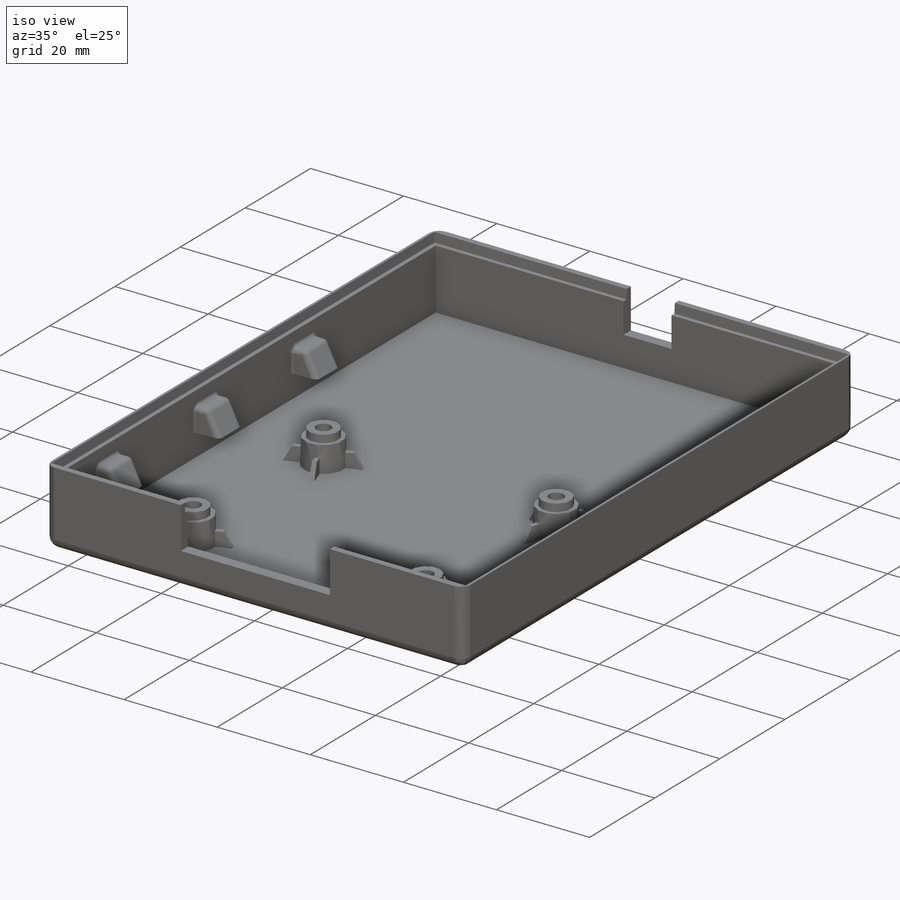
[diagram: iso view]
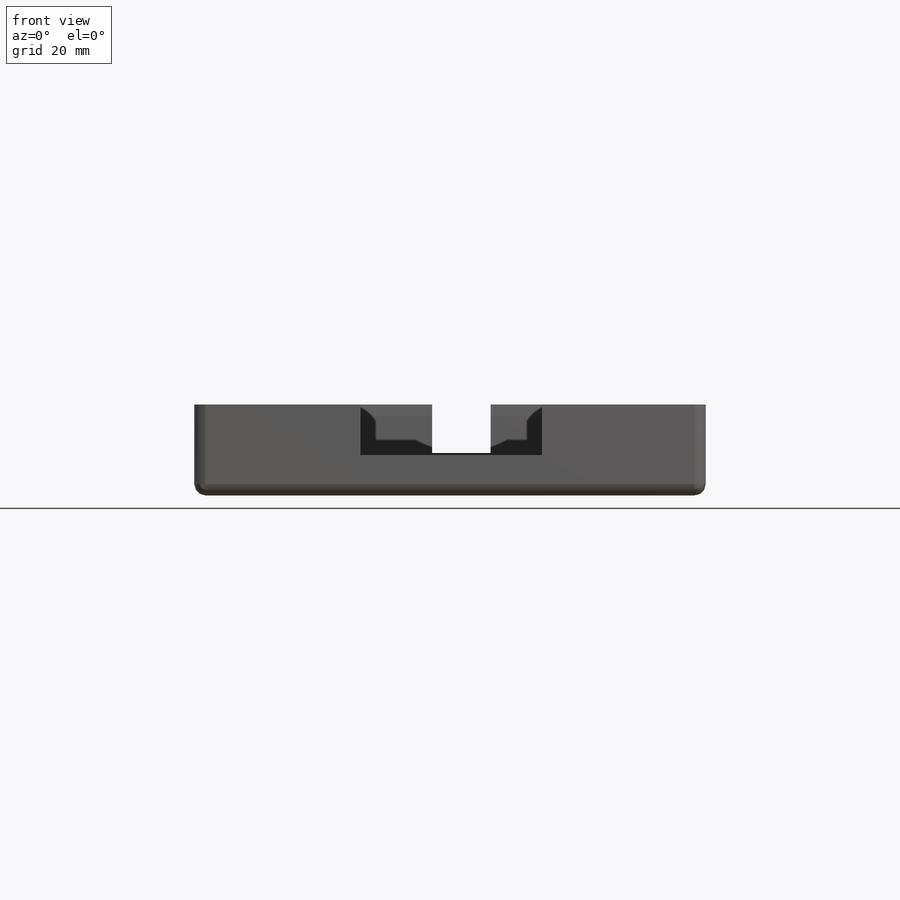
[diagram: front view]
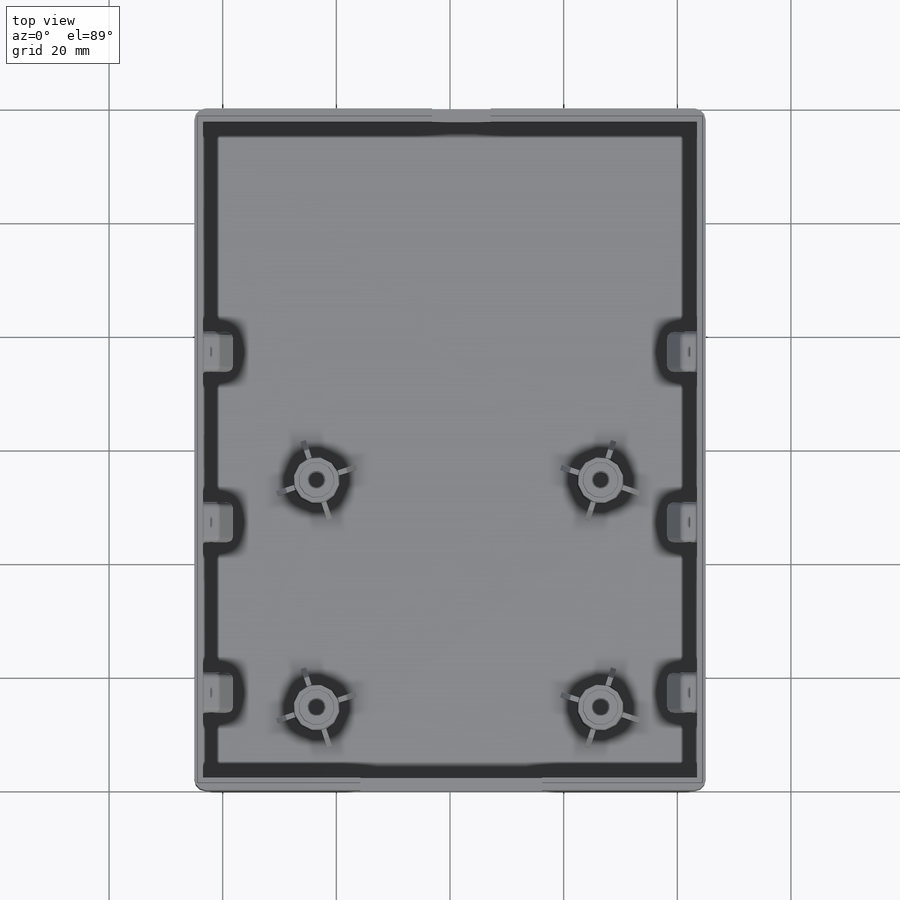
[diagram: top view]
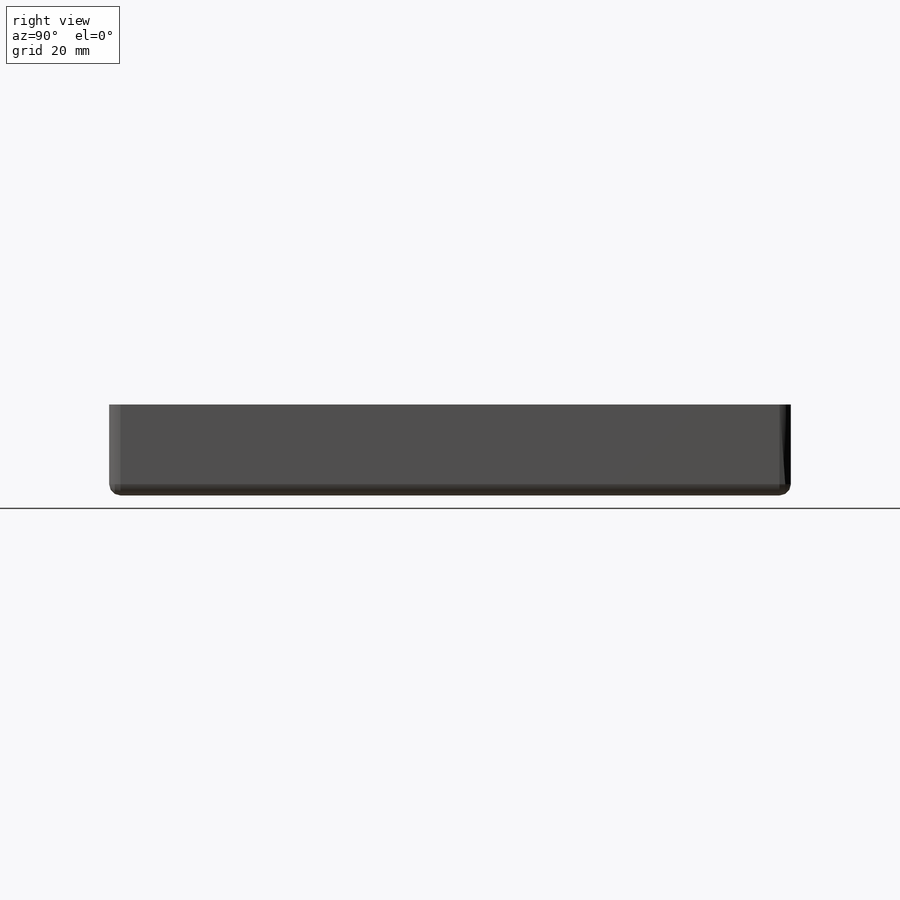
[diagram: right view]
SOLIDWORKS PART (.sldprt)
format: sldprt  version: not decoded by parser v0  size: 712,192 bytes
history: native  units: mm
features: sketch x10, plane x5, extrude x5, fillet x5, cut_extrude x4, mirror x2, material x1, pattern_linear x1 (+10 scaffold rows collapsed)
feature tree (43):
  scaffold x10  (default folders/planes/origin — collapsed)
  material  "Материал <не указан>"
  plane  "Спереди"
  plane  "Сверху"
  plane  "Справа"
  sketch  "Эскиз1"  dims[D1=120.0mm D2=90.0mm]
  extrude  "Бобышка-Вытянуть2"  Depth=16mm
  sketch  "Эскиз3"  dims[D1=87.0mm D2=115.5mm]
  cut_extrude  "Вырез-Вытянуть1"  Depth=15mm GrooveHeight=2mm GrooveWidth=1mm GrooveDraftAngle=3deg
  fillet  "Скругление1"  Radius=2mm
  sketch  "Эскиз4"  dims[D1=103.0mm D2=25.0mm D3=40.0mm D4=42.0mm]
  sketch  "Трехмерный эскиз1"
  extrude  "Монтажная бобышка1"  Depth=6mm BossHeight=6mm BossDiam=8mm StepHeight=1.6mm StepDia=6.2mm HoleDiam=3.2mm CBoreDiam=5mm CBoreDepth=1.5mm Clearance=0.5mm FinLength=8mm FinWidth=1mm FinHeight=3mm ChamferDist=2.4mm BossDraft=2deg HoleDraft=1deg StepDraft=0deg
  sketch  "Трехмерный эскиз2"
  extrude  "Монтажная бобышка2"  Depth=6mm BossHeight=6mm BossDiam=8mm StepHeight=1.6mm StepDia=6.2mm HoleDiam=3.2mm CBoreDiam=5mm CBoreDepth=1.5mm Clearance=0.254mm FinLength=8mm FinWidth=1mm FinHeight=3mm ChamferDist=2.4mm BossDraft=2deg HoleDraft=1deg StepDraft=0deg
  plane  "Плоскость1"
  mirror  "Зеркальное отражение3"
  sketch  "Эскиз5"  dims[c1.D1=30.9mm c1.D2=29.95mm c2.D1=10.3mm c2.D2=1.5mm c2.D3=10.0mm c3.D2=43.0mm]
  sketch  "Эскиз6"  dims[D1=32.0mm D2=14.0mm]
  cut_extrude  "Вырез-Вытянуть3"  Depth=10mm
  cut_extrude  "Вырез-Вытянуть4"  Depth=10mm
  sketch  "Эскиз7"
  extrude  "Бобышка-Вытянуть3"  [1 undecoded]
  sketch  "Эскиз8"
  cut_extrude  "Вырез-Вытянуть5"  Depth=4mm
  plane  "Плоскость4"  Offset=37mm
  sketch  "Эскиз10"  dims[D1=5.0mm D2=4.0mm D3=6.5mm D4=6.0mm]
  extrude  "Бобышка-Вытянуть5"  Depth=7mm
  fillet  "Скругление2"  Radius=1mm
  fillet  "Скругление3"  Radius=0.5mm
  mirror  "Зеркальное отражение7"
  fillet  "Скругление4"  Radius=0.5mm
  fillet  "Скругление5"  Radius=1mm
  pattern_linear  "Линейный массив2"  Count1=3 Count2=1 Spacing1=30mm Spacing2=10mm
decode coverage: 20 of 27 modeling features carry decoded parameters
note: 1 parameter value undecoded
note: suppression state not decoded; provenance and decode notes live in map.json
